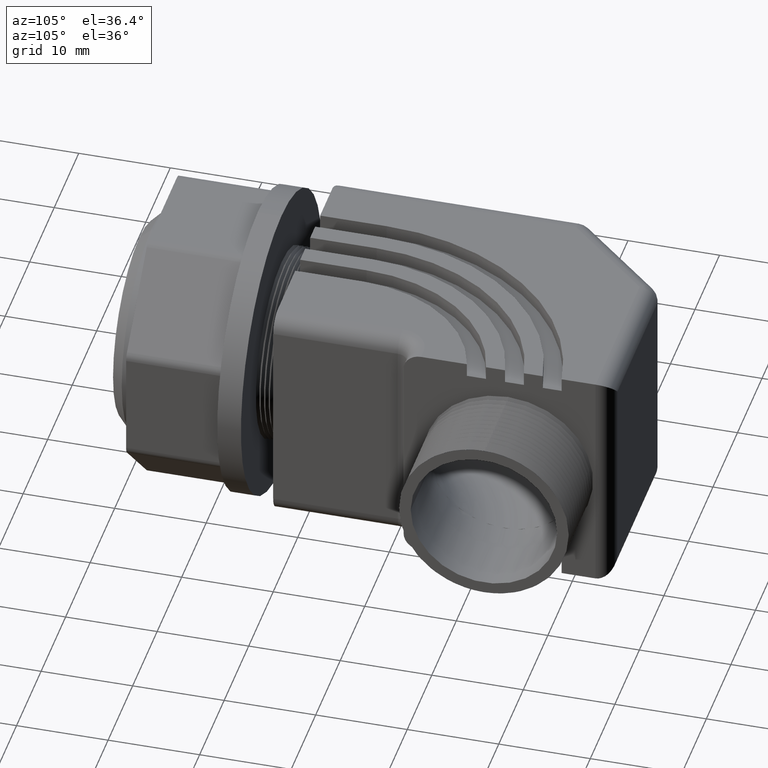
[diagram: clean part render]
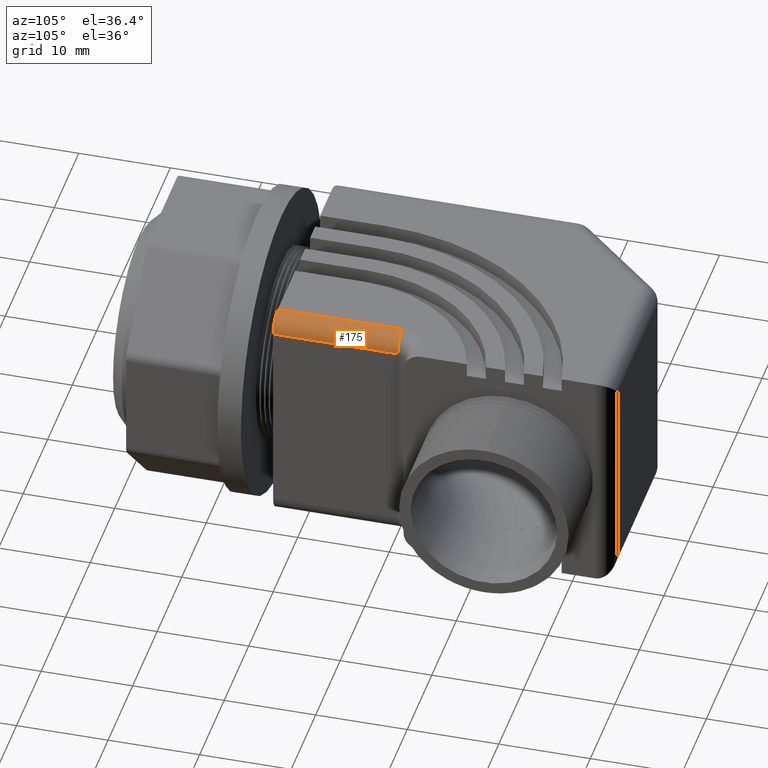
[diagram: same view with one face highlighted and labeled with its STEP entity id]
A machine part, auxiliary view. The second image highlights one B-rep face of the part: STEP entity #175.
In plain terms, the highlighted cylindrical surface (edge-blend (fillet) strip) has radius 1.905 mm, axis along (0, -1, 0).
Its self-contained STEP definition (entity closure, byte-faithful):
#26 = EDGE_CURVE ( 'NONE', #29, #2666, #2284, .T. ) ;
#29 = VERTEX_POINT ( 'NONE', #2286 ) ;
#168 = EDGE_CURVE ( 'NONE', #3054, #29, #2425, .T. ) ;
#169 = ORIENTED_EDGE ( 'NONE', *, *, #3021, .F. ) ;
#174 = ORIENTED_EDGE ( 'NONE', *, *, #2732, .F. ) ;
#175 = ADVANCED_FACE ( 'NONE', ( #2535 ), #2530, .T. ) ;
#176 = EDGE_LOOP ( 'NONE', ( #174, #212, #213, #169 ) ) ;
#212 = ORIENTED_EDGE ( 'NONE', *, *, #26, .F. ) ;
#213 = ORIENTED_EDGE ( 'NONE', *, *, #168, .F. ) ;
#2284 = LINE ( 'NONE', #2367, #2366 ) ;
#2286 = CARTESIAN_POINT ( 'NONE',  ( 0.5130177549999996900, 1.250000000000000200, 0.4249999999999999900 ) ) ;
#2365 = DIRECTION ( 'NONE',  ( 7.645096997194762600E-016, -1.000000000000000000, -0.0000000000000000000 ) ) ;
#2366 = VECTOR ( 'NONE', #2365, 39.37007874015748100 ) ;
#2367 = CARTESIAN_POINT ( 'NONE',  ( 0.5130177550000002400, 0.7140000000000000800, 0.4249999999999999900 ) ) ;
#2421 = DIRECTION ( 'NONE',  ( 0.0000000000000000000, 0.0000000000000000000, 1.000000000000000000 ) ) ;
#2422 = DIRECTION ( 'NONE',  ( 0.0000000000000000000, 1.000000000000000000, 0.0000000000000000000 ) ) ;
#2423 = CARTESIAN_POINT ( 'NONE',  ( 0.4380177549999998400, 1.250000000000000200, 0.4249999999999999900 ) ) ;
#2424 = AXIS2_PLACEMENT_3D ( 'NONE', #2423, #2422, #2421 ) ;
#2425 = CIRCLE ( 'NONE', #2424, 0.07500000000000002500 ) ;
#2526 = DIRECTION ( 'NONE',  ( 1.000000000000000000, 0.0000000000000000000, 0.0000000000000000000 ) ) ;
#2527 = DIRECTION ( 'NONE',  ( 7.645096997194763600E-016, -1.000000000000000000, 0.0000000000000000000 ) ) ;
#2528 = CARTESIAN_POINT ( 'NONE',  ( 0.4380177549999998400, 1.250000000000000200, 0.4249999999999999900 ) ) ;
#2529 = AXIS2_PLACEMENT_3D ( 'NONE', #2528, #2527, #2526 ) ;
#2530 = CYLINDRICAL_SURFACE ( 'NONE', #2529, 0.07500000000000002500 ) ;
#2535 = FACE_OUTER_BOUND ( 'NONE', #176, .T. ) ;
#2666 = VERTEX_POINT ( 'NONE', #5109 ) ;
#2732 = EDGE_CURVE ( 'NONE', #2666, #2735, #5178, .T. ) ;
#2735 = VERTEX_POINT ( 'NONE', #5232 ) ;
#3021 = EDGE_CURVE ( 'NONE', #2735, #3054, #5738, .T. ) ;
#3054 = VERTEX_POINT ( 'NONE', #5789 ) ;
#5109 = CARTESIAN_POINT ( 'NONE',  ( 0.5130177550000002400, 0.7140000000000000800, 0.4249999999999999900 ) ) ;
#5175 = DIRECTION ( 'NONE',  ( -0.0000000000000000000, -1.000000000000000000, 0.0000000000000000000 ) ) ;
#5176 = CARTESIAN_POINT ( 'NONE',  ( 0.4380177550000002300, 0.7139999999999999700, 0.4249999999999999900 ) ) ;
#5177 = AXIS2_PLACEMENT_3D ( 'NONE', #5176, #5175, #5238 ) ;
#5178 = CIRCLE ( 'NONE', #5177, 0.07500000000000002500 ) ;
#5232 = CARTESIAN_POINT ( 'NONE',  ( 0.4380177550000002300, 0.7140000000000000800, 0.5000000000000000000 ) ) ;
#5238 = DIRECTION ( 'NONE',  ( 0.0000000000000000000, 0.0000000000000000000, 1.000000000000000000 ) ) ;
#5735 = DIRECTION ( 'NONE',  ( -7.645096997194762600E-016, 1.000000000000000000, 0.0000000000000000000 ) ) ;
#5736 = VECTOR ( 'NONE', #5735, 39.37007874015748100 ) ;
#5737 = CARTESIAN_POINT ( 'NONE',  ( 0.4380177549999998400, 1.250000000000000200, 0.5000000000000000000 ) ) ;
#5738 = LINE ( 'NONE', #5737, #5736 ) ;
#5789 = CARTESIAN_POINT ( 'NONE',  ( 0.4380177549999998400, 1.250000000000000200, 0.5000000000000000000 ) ) ;